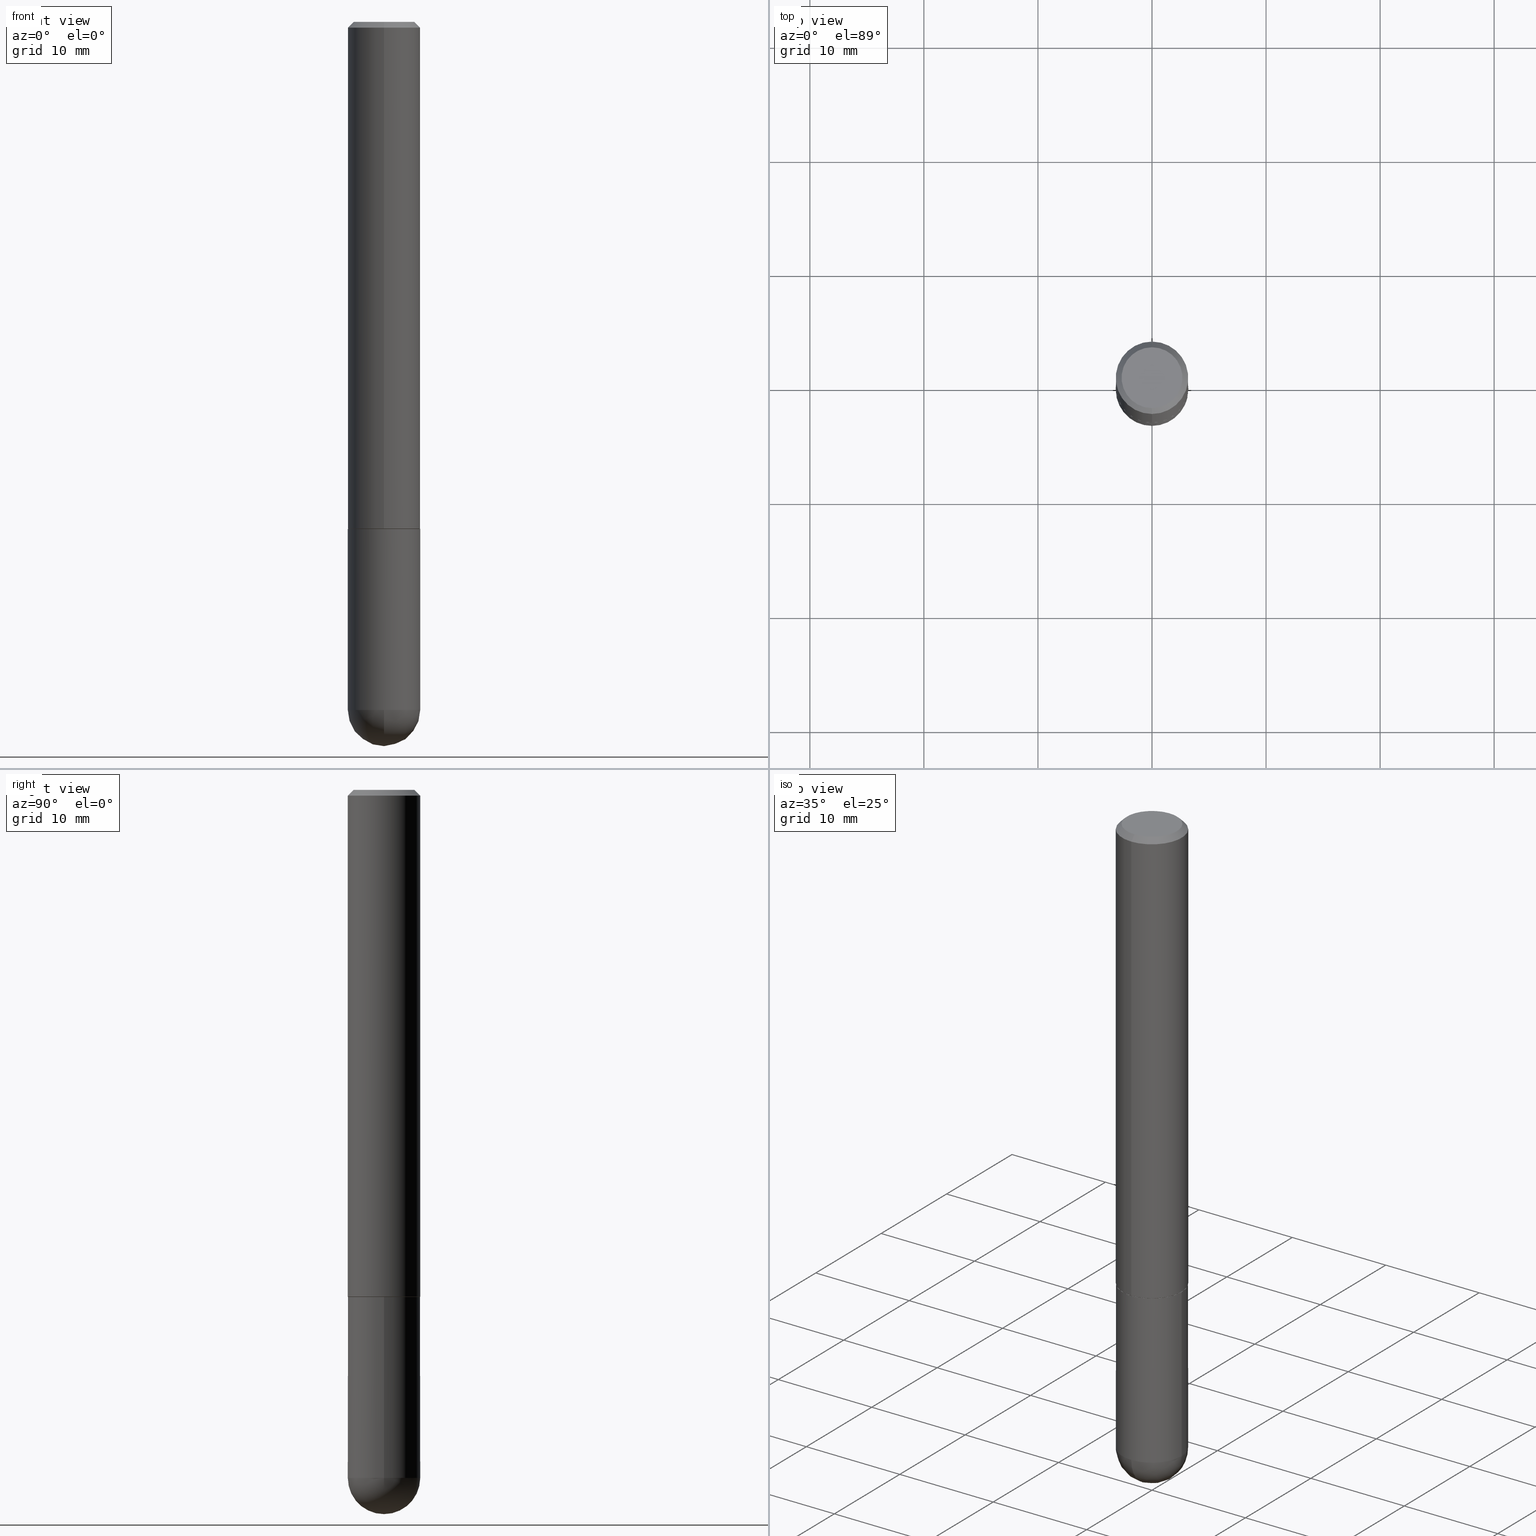
[diagram: canonical four-view strip — front | top / right | iso, engineering-drawing reading convention]
A machine part, canonical four-view strip (front | top / right | iso — engineering-drawing reading convention). The complete STEP part file that produces these views, byte-faithful:
ISO-10303-21;
HEADER;
FILE_DESCRIPTION (( 'STEP AP203' ),
    '1' );
FILE_NAME ('30920.STEP',
    '2024-02-21T16:45:09',
    ( '' ),
    ( '' ),
    'SwSTEP 2.0',
    'SolidWorks 2023',
    '' );
FILE_SCHEMA (( 'CONFIG_CONTROL_DESIGN' ));
ENDSEC;

DATA;
#1 = PRODUCT_DEFINITION ( 'UNKNOWN', '', #207, #204 ) ;
#2 = CARTESIAN_POINT ( 'NONE',  ( 0.1250000000000000000, -8.074050596074771916E-15, -2.375000000000000000 ) ) ;
#3 = PERSON_AND_ORGANIZATION ( #394, #167 ) ;
#4 = DIRECTION ( 'NONE',  ( -2.445468806185136597E-29, 3.491481338843145583E-15, 1.000000000000000000 ) ) ;
#5 = CARTESIAN_POINT ( 'NONE',  ( -0.1250000000000000000, -6.313001841663863345E-15, -1.750000000000000222 ) ) ;
#6 = UNCERTAINTY_MEASURE_WITH_UNIT (LENGTH_MEASURE( 1.000000000000000082E-05 ), #187, 'distance_accuracy_value', 'NONE');
#7 = VECTOR ( 'NONE', #76, 39.37007874015748143 ) ;
#8 = LOCAL_TIME ( 11, 45, 9.000000000000000000, #34 ) ;
#9 = MANIFOLD_SOLID_BREP ( 'Body-Move/Copy2[1]', #161 ) ;
#10 = CARTESIAN_POINT ( 'NONE',  ( 5.807988414689700538E-29, -8.292268179752471696E-15, -2.375000000000000000 ) ) ;
#11 = CARTESIAN_POINT ( 'NONE',  ( 4.891412266665553962E-31, -6.982282945719821124E-17, -0.02000000000000002470 ) ) ;
#12 = ADVANCED_FACE ( 'NONE', ( #198 ), #130, .T. ) ;
#13 = CARTESIAN_POINT ( 'NONE',  ( 4.279570410823989044E-29, -6.110092342975505460E-15, -1.750000000000000222 ) ) ;
#14 = CC_DESIGN_PERSON_AND_ORGANIZATION_ASSIGNMENT ( #292, #381, ( #207 ) ) ;
#15 = AXIS2_PLACEMENT_3D ( 'NONE', #176, #330, #267 ) ;
#16 = CARTESIAN_POINT ( 'NONE',  ( 8.728703347108260359E-16, 0.1249999999999938799, -1.750000000000000666 ) ) ;
#17 = PERSON_AND_ORGANIZATION ( #394, #167 ) ;
#18 = EDGE_CURVE ( 'NONE', #42, #239, #164, .T. ) ;
#19 = ORIENTED_EDGE ( 'NONE', *, *, #258, .F. ) ;
#20 = CC_DESIGN_DATE_AND_TIME_ASSIGNMENT ( #352, #226, ( #282 ) ) ;
#21 = FACE_OUTER_BOUND ( 'NONE', #123, .T. ) ;
#22 = AXIS2_PLACEMENT_3D ( 'NONE', #152, #402, #50 ) ;
#23 = ORIENTED_EDGE ( 'NONE', *, *, #182, .T. ) ;
#24 = DIRECTION ( 'NONE',  ( -6.982962677686266711E-15, -1.000000000000000000, 3.491141472859906642E-15 ) ) ;
#25 = ORIENTED_EDGE ( 'NONE', *, *, #66, .T. ) ;
#26 = APPLICATION_CONTEXT ( 'configuration controlled 3d designs of mechanical parts and assemblies' ) ;
#27 = ORIENTED_EDGE ( 'NONE', *, *, #287, .T. ) ;
#28 = ORIENTED_EDGE ( 'NONE', *, *, #199, .F. ) ;
#29 = CC_DESIGN_APPROVAL ( #261, ( #282 ) ) ;
#30 = DIRECTION ( 'NONE',  ( -6.982962677686265922E-15, -1.000000000000000000, 4.406206441393973340E-15 ) ) ;
#31 = PERSON_AND_ORGANIZATION_ROLE ( 'classification_officer' ) ;
#32 = DIRECTION ( 'NONE',  ( -6.982962677686265133E-15, -1.000000000000000000, 3.491141472859907037E-15 ) ) ;
#33 = ADVANCED_FACE ( 'NONE', ( #295 ), #412, .T. ) ;
#34 = COORDINATED_UNIVERSAL_TIME_OFFSET ( 5, 0, .BEHIND. ) ;
#35 = DIRECTION ( 'NONE',  ( 6.982962677686265922E-15, 1.000000000000000000, -3.483106191921935554E-15 ) ) ;
#36 = PERSON_AND_ORGANIZATION ( #394, #167 ) ;
#37 = DIRECTION ( 'NONE',  ( 2.445706133332773460E-29, -3.491141472859906642E-15, -1.000000000000000000 ) ) ;
#38 = CARTESIAN_POINT ( 'NONE',  ( 4.277540027199021844E-29, -6.106006436031975850E-15, -1.749000000000000110 ) ) ;
#39 = DIRECTION ( 'NONE',  ( -6.982962677686265133E-15, -1.000000000000000000, 4.370956789862812472E-15 ) ) ;
#40 = AXIS2_PLACEMENT_3D ( 'NONE', #279, #216, #24 ) ;
#41 = LINE ( 'NONE', #331, #7 ) ;
#42 = VERTEX_POINT ( 'NONE', #2 ) ;
#43 = CARTESIAN_POINT ( 'NONE',  ( 5.807988414689700538E-29, -8.292268179752471696E-15, -2.375000000000000000 ) ) ;
#44 = DIRECTION ( 'NONE',  ( 6.982962677686265133E-15, 1.000000000000000000, 0.000000000000000000 ) ) ;
#45 = AXIS2_PLACEMENT_3D ( 'NONE', #125, #37, #97 ) ;
#46 = AXIS2_PLACEMENT_3D ( 'NONE', #173, #136, #44 ) ;
#47 = CC_DESIGN_SECURITY_CLASSIFICATION ( #282, ( #207 ) ) ;
#48 = APPROVAL_ROLE ( '' ) ;
#49 = EDGE_LOOP ( 'NONE', ( #286, #366, #225, #51 ) ) ;
#50 = DIRECTION ( 'NONE',  ( -6.982962677686265922E-15, -1.000000000000000000, 4.406206441393973340E-15 ) ) ;
#51 = ORIENTED_EDGE ( 'NONE', *, *, #66, .F. ) ;
#52 = AXIS2_PLACEMENT_3D ( 'NONE', #131, #263, #227 ) ;
#53 = ORIENTED_EDGE ( 'NONE', *, *, #135, .F. ) ;
#54 = ADVANCED_FACE ( 'NONE', ( #68 ), #133, .F. ) ;
#55 = LINE ( 'NONE', #365, #406 ) ;
#56 = ORIENTED_EDGE ( 'NONE', *, *, #410, .F. ) ;
#57 = ADVANCED_FACE ( 'NONE', ( #322 ), #265, .F. ) ;
#58 = VERTEX_POINT ( 'NONE', #72 ) ;
#59 = COORDINATED_UNIVERSAL_TIME_OFFSET ( 5, 0, .BEHIND. ) ;
#60 = ADVANCED_FACE ( 'NONE', ( #230 ), #384, .T. ) ;
#61 = DIRECTION ( 'NONE',  ( 2.445706133332774021E-29, -3.491141472859906642E-15, -1.000000000000000000 ) ) ;
#62 = CIRCLE ( 'NONE', #301, 0.1250000000000000000 ) ;
#63 = CIRCLE ( 'NONE', #15, 0.1250000000000001943 ) ;
#64 = DATE_TIME_ROLE ( 'creation_date' ) ;
#65 = CARTESIAN_POINT ( 'NONE',  ( 5.807988414689700538E-29, -8.292268179752471696E-15, -2.375000000000000000 ) ) ;
#66 = EDGE_CURVE ( 'NONE', #223, #288, #128, .T. ) ;
#67 = DATE_AND_TIME ( #195, #8 ) ;
#68 = FACE_OUTER_BOUND ( 'NONE', #393, .T. ) ;
#69 = APPROVAL_DATE_TIME ( #67, #273 ) ;
#70 = CARTESIAN_POINT ( 'NONE',  ( 4.279985733332354606E-29, -6.109497577504836920E-15, -1.750000000000000222 ) ) ;
#71 = CC_DESIGN_APPROVAL ( #399, ( #1 ) ) ;
#72 = CARTESIAN_POINT ( 'NONE',  ( -8.881784197000694204E-16, -0.1250000000000086320, -2.374999999999999556 ) ) ;
#73 = EDGE_CURVE ( 'NONE', #84, #153, #408, .T. ) ;
#74 = CARTESIAN_POINT ( 'NONE',  ( 8.728703347107837333E-16, 0.1249999999999999306, -0.02000000000000046185 ) ) ;
#75 = DIRECTION ( 'NONE',  ( -2.445468806185136597E-29, 3.491481338843145583E-15, 1.000000000000000000 ) ) ;
#76 = DIRECTION ( 'NONE',  ( 5.024295867788490741E-15, 0.7071067811866103003, 0.7071067811864847341 ) ) ;
#77 = ORIENTED_EDGE ( 'NONE', *, *, #199, .T. ) ;
#78 = DIRECTION ( 'NONE',  ( -4.851104656540959542E-15, -0.7071067811865493491, -0.7071067811865457964 ) ) ;
#79 = PLANE ( 'NONE',  #109 ) ;
#80 = PERSON_AND_ORGANIZATION_ROLE ( 'design_owner' ) ;
#81 = LOCAL_TIME ( 11, 45, 9.000000000000000000, #294 ) ;
#82 = EDGE_LOOP ( 'NONE', ( #310, #192, #77, #369 ) ) ;
#83 = ORIENTED_EDGE ( 'NONE', *, *, #298, .F. ) ;
#84 = VERTEX_POINT ( 'NONE', #200 ) ;
#85 = DIRECTION ( 'NONE',  ( -2.445468806185136597E-29, 3.491481338843145583E-15, 1.000000000000000000 ) ) ;
#86 = EDGE_LOOP ( 'NONE', ( #335, #280, #401, #118, #249 ) ) ;
#87 = EDGE_LOOP ( 'NONE', ( #56, #344 ) ) ;
#88 = EDGE_CURVE ( 'NONE', #223, #220, #132, .T. ) ;
#89 = APPROVAL_DATE_TIME ( #98, #399 ) ;
#90 = FACE_OUTER_BOUND ( 'NONE', #82, .T. ) ;
#91 = CC_DESIGN_PERSON_AND_ORGANIZATION_ASSIGNMENT ( #350, #348, ( #207 ) ) ;
#92 = PERSON_AND_ORGANIZATION ( #394, #167 ) ;
#93 = ORIENTED_EDGE ( 'NONE', *, *, #258, .T. ) ;
#94 = AXIS2_PLACEMENT_3D ( 'NONE', #285, #148, #277 ) ;
#95 = LOCAL_TIME ( 11, 45, 9.000000000000000000, #197 ) ;
#96 = PERSON_AND_ORGANIZATION ( #394, #167 ) ;
#97 = DIRECTION ( 'NONE',  ( 6.982962677686265922E-15, 1.000000000000000000, -3.491141472859906642E-15 ) ) ;
#98 = DATE_AND_TIME ( #158, #398 ) ;
#99 = VERTEX_POINT ( 'NONE', #409 ) ;
#100 = EDGE_CURVE ( 'NONE', #58, #42, #262, .T. ) ;
#101 = PRODUCT ( '30920', '30920', '', ( #243 ) ) ;
#102 = CARTESIAN_POINT ( 'NONE',  ( 0.000000000000000000, 0.000000000000000000, 0.000000000000000000 ) ) ;
#103 = AXIS2_PLACEMENT_3D ( 'NONE', #266, #156, #32 ) ;
#104 = DIRECTION ( 'NONE',  ( -1.000000000000000000, 6.982962677686265922E-15, -4.876176775795935793E-29 ) ) ;
#105 = EDGE_CURVE ( 'NONE', #84, #58, #333, .T. ) ;
#106 = DIRECTION ( 'NONE',  ( 6.982962677686265922E-15, 1.000000000000000000, -3.483106191921935554E-15 ) ) ;
#107 = EDGE_CURVE ( 'NONE', #220, #223, #213, .T. ) ;
#108 = CARTESIAN_POINT ( 'NONE',  ( -8.728703347107841277E-16, -0.1250000000000001110, 4.363926841074887247E-16 ) ) ;
#109 = AXIS2_PLACEMENT_3D ( 'NONE', #16, #364, #104 ) ;
#110 = DIRECTION ( 'NONE',  ( 1.000000000000000000, -6.982962677686270655E-15, 0.000000000000000000 ) ) ;
#111 = ADVANCED_BREP_SHAPE_REPRESENTATION ( '30920', ( #9, #145, #214 ), #124 ) ;
#112 = CARTESIAN_POINT ( 'NONE',  ( -7.889572697437259167E-16, -0.1050000000000000239, 3.537286312517489352E-16 ) ) ;
#113 = CYLINDRICAL_SURFACE ( 'NONE', #385, 0.1250000000000000000 ) ;
#114 = EDGE_LOOP ( 'NONE', ( #120, #315, #19, #253 ) ) ;
#115 = ADVANCED_FACE ( 'NONE', ( #383 ), #162, .T. ) ;
#116 = ORIENTED_EDGE ( 'NONE', *, *, #135, .T. ) ;
#117 = ADVANCED_FACE ( 'NONE', ( #90 ), #260, .T. ) ;
#118 = ORIENTED_EDGE ( 'NONE', *, *, #18, .T. ) ;
#119 = PRODUCT_RELATED_PRODUCT_CATEGORY ( 'detail', '', ( #101 ) ) ;
#120 = ORIENTED_EDGE ( 'NONE', *, *, #410, .T. ) ;
#121 = LENGTH_MEASURE_WITH_UNIT ( LENGTH_MEASURE( 0.02539999999999999897 ), #180 );
#122 = AXIS2_PLACEMENT_3D ( 'NONE', #43, #175, #110 ) ;
#123 = EDGE_LOOP ( 'NONE', ( #184, #355, #83, #353 ) ) ;
#124 =( GEOMETRIC_REPRESENTATION_CONTEXT ( 3 ) GLOBAL_UNCERTAINTY_ASSIGNED_CONTEXT ( ( #6 ) ) GLOBAL_UNIT_ASSIGNED_CONTEXT ( ( #187, #252, #250 ) ) REPRESENTATION_CONTEXT ( 'NONE', 'WORKASPACE' ) );
#125 = CARTESIAN_POINT ( 'NONE',  ( 7.332110811570580243E-16, 0.1050000000000000239, -3.729904663495609390E-16 ) ) ;
#126 = APPLICATION_CONTEXT ( 'configuration controlled 3d designs of mechanical parts and assemblies' ) ;
#127 = PERSON_AND_ORGANIZATION_ROLE ( 'creator' ) ;
#128 = LINE ( 'NONE', #382, #154 ) ;
#129 = APPROVAL_STATUS ( 'not_yet_approved' ) ;
#130 = CONICAL_SURFACE ( 'NONE', #289, 0.1250000000000000000, 0.7853981633974473908 ) ;
#131 = CARTESIAN_POINT ( 'NONE',  ( 5.476868636775814291E-29, -8.766450547892521992E-15, -2.375000000000000000 ) ) ;
#132 = CIRCLE ( 'NONE', #155, 0.1050000000000000239 ) ;
#133 = PLANE ( 'NONE',  #45 ) ;
#134 = DIRECTION ( 'NONE',  ( 1.000000000000000000, -6.982962677686270655E-15, 0.000000000000000000 ) ) ;
#135 = EDGE_CURVE ( 'NONE', #373, #84, #255, .T. ) ;
#136 = DIRECTION ( 'NONE',  ( 1.000000000000000000, -6.982962677686265922E-15, 4.883557194083112340E-29 ) ) ;
#137 = AXIS2_PLACEMENT_3D ( 'NONE', #102, #234, #376 ) ;
#138 = DIRECTION ( 'NONE',  ( -2.445468806185136597E-29, 3.491481338843145583E-15, 1.000000000000000000 ) ) ;
#139 = DIRECTION ( 'NONE',  ( -2.445706133332774021E-29, 3.491141472859906642E-15, 1.000000000000000000 ) ) ;
#140 = DIRECTION ( 'NONE',  ( -2.445706133332774021E-29, 3.491141472859906642E-15, 1.000000000000000000 ) ) ;
#141 = CIRCLE ( 'NONE', #22, 0.1239999999999999991 ) ;
#142 = CARTESIAN_POINT ( 'NONE',  ( 4.891412266665553962E-31, -6.982282945719821124E-17, -0.02000000000000002470 ) ) ;
#143 = PERSON_AND_ORGANIZATION ( #394, #167 ) ;
#144 = CARTESIAN_POINT ( 'NONE',  ( 8.728703347108403340E-16, 0.1249999999999915623, -2.375000000000000888 ) ) ;
#145 = MANIFOLD_SOLID_BREP ( 'Body-Move/Copy2[2]', #254 ) ;
#146 = ORIENTED_EDGE ( 'NONE', *, *, #73, .T. ) ;
#147 = AXIS2_PLACEMENT_3D ( 'NONE', #270, #169, #391 ) ;
#148 = DIRECTION ( 'NONE',  ( -2.445468806185136597E-29, 3.491481338843145583E-15, 1.000000000000000000 ) ) ;
#149 = ORIENTED_EDGE ( 'NONE', *, *, #178, .F. ) ;
#150 = DIRECTION ( 'NONE',  ( 1.000000000000000000, -6.982962677686266711E-15, 4.876176775795935793E-29 ) ) ;
#151 = VERTEX_POINT ( 'NONE', #387 ) ;
#152 = CARTESIAN_POINT ( 'NONE',  ( 4.279985733332354606E-29, -6.109497577504836920E-15, -1.750000000000000222 ) ) ;
#153 = VERTEX_POINT ( 'NONE', #5 ) ;
#154 = VECTOR ( 'NONE', #290, 39.37007874015748143 ) ;
#155 = AXIS2_PLACEMENT_3D ( 'NONE', #293, #323, #325 ) ;
#156 = DIRECTION ( 'NONE',  ( -2.445706133332774021E-29, 3.491141472859906642E-15, 1.000000000000000000 ) ) ;
#157 = EDGE_CURVE ( 'NONE', #317, #256, #41, .T. ) ;
#158 = CALENDAR_DATE ( 2024, 21, 2 ) ;
#159 = CARTESIAN_POINT ( 'NONE',  ( 4.891412266665553962E-31, -6.982282945719821124E-17, -0.02000000000000002470 ) ) ;
#160 = APPROVAL_STATUS ( 'not_yet_approved' ) ;
#161 = CLOSED_SHELL ( 'NONE', ( #115, #33, #395, #209, #329 ) ) ;
#162 = CYLINDRICAL_SURFACE ( 'NONE', #137, 0.1250000000000000000 ) ;
#163 = CALENDAR_DATE ( 2024, 21, 2 ) ;
#164 = LINE ( 'NONE', #380, #360 ) ;
#165 = AXIS2_PLACEMENT_3D ( 'NONE', #236, #139, #210 ) ;
#166 = DIMENSIONAL_EXPONENTS ( 1.000000000000000000, 0.000000000000000000, 0.000000000000000000, 0.000000000000000000, 0.000000000000000000, 0.000000000000000000, 0.000000000000000000 ) ;
#167 = ORGANIZATION ( 'UNSPECIFIED', 'UNSPECIFIED', '' ) ;
#168 = EDGE_LOOP ( 'NONE', ( #116, #146, #283, #375, #340 ) ) ;
#169 = DIRECTION ( 'NONE',  ( -2.445706133332774021E-29, 3.491141472859906642E-15, 1.000000000000000000 ) ) ;
#170 = DIRECTION ( 'NONE',  ( 1.000000000000000000, -6.982962677686262766E-15, 0.000000000000000000 ) ) ;
#171 = EDGE_CURVE ( 'NONE', #239, #153, #62, .T. ) ;
#172 = CONICAL_SURFACE ( 'NONE', #186, 0.1250000000000000000, 0.7853981633974473908 ) ;
#173 = CARTESIAN_POINT ( 'NONE',  ( 5.476868636775814291E-29, -8.766450547892521992E-15, -2.375000000000000000 ) ) ;
#174 = EDGE_LOOP ( 'NONE', ( #320, #346, #25, #345 ) ) ;
#175 = DIRECTION ( 'NONE',  ( -2.445468806185136597E-29, 3.491481338843145583E-15, 1.000000000000000000 ) ) ;
#176 = CARTESIAN_POINT ( 'NONE',  ( 5.476868636775814291E-29, -8.766450547892521992E-15, -2.375000000000000000 ) ) ;
#177 = AXIS2_PLACEMENT_3D ( 'NONE', #203, #326, #39 ) ;
#178 = EDGE_CURVE ( 'NONE', #190, #373, #361, .T. ) ;
#179 = APPLICATION_PROTOCOL_DEFINITION ( 'international standard', 'config_control_design', 1994, #26 ) ;
#180 =( LENGTH_UNIT ( ) NAMED_UNIT ( * ) SI_UNIT ( $, .METRE. ) );
#181 = ORIENTED_EDGE ( 'NONE', *, *, #171, .T. ) ;
#182 = EDGE_CURVE ( 'NONE', #190, #58, #63, .T. ) ;
#183 = DIRECTION ( 'NONE',  ( -1.000000000000000000, 6.982962677686265922E-15, -4.883557194083112901E-29 ) ) ;
#184 = ORIENTED_EDGE ( 'NONE', *, *, #182, .F. ) ;
#185 = EDGE_CURVE ( 'NONE', #288, #99, #246, .T. ) ;
#186 = AXIS2_PLACEMENT_3D ( 'NONE', #142, #304, #106 ) ;
#187 =( CONVERSION_BASED_UNIT ( 'INCH', #121 ) LENGTH_UNIT ( ) NAMED_UNIT ( #166 ) );
#188 = EDGE_LOOP ( 'NONE', ( #181, #219 ) ) ;
#189 = CARTESIAN_POINT ( 'NONE',  ( 5.476868636775814291E-29, -8.766450547892521992E-15, -2.375000000000000000 ) ) ;
#190 = VERTEX_POINT ( 'NONE', #303 ) ;
#191 = APPROVAL_DATE_TIME ( #224, #261 ) ;
#192 = ORIENTED_EDGE ( 'NONE', *, *, #291, .T. ) ;
#193 = AXIS2_PLACEMENT_3D ( 'NONE', #202, #349, #30 ) ;
#194 = DIRECTION ( 'NONE',  ( -2.445706133332773460E-29, 3.491141472859906642E-15, 1.000000000000000000 ) ) ;
#195 = CALENDAR_DATE ( 2024, 21, 2 ) ;
#196 = DIRECTION ( 'NONE',  ( -2.445468806185136877E-29, 3.491481338843145188E-15, 1.000000000000000000 ) ) ;
#197 = COORDINATED_UNIVERSAL_TIME_OFFSET ( 5, 0, .BEHIND. ) ;
#198 = FACE_OUTER_BOUND ( 'NONE', #174, .T. ) ;
#199 = EDGE_CURVE ( 'NONE', #337, #99, #388, .T. ) ;
#200 = CARTESIAN_POINT ( 'NONE',  ( -0.1250000000000000000, -6.313001841663864134E-15, -2.375000000000000000 ) ) ;
#201 = AXIS2_PLACEMENT_3D ( 'NONE', #38, #140, #363 ) ;
#202 = CARTESIAN_POINT ( 'NONE',  ( 4.279985733332354606E-29, -6.109497577504836920E-15, -1.750000000000000222 ) ) ;
#203 = CARTESIAN_POINT ( 'NONE',  ( 4.277540027199021844E-29, -6.106006436031975850E-15, -1.749000000000000110 ) ) ;
#204 = DESIGN_CONTEXT ( 'detailed design', #26, 'design' ) ;
#205 = CARTESIAN_POINT ( 'NONE',  ( 0.1250000000000000000, -6.982962677686288010E-15, -1.750000000000000222 ) ) ;
#206 = VECTOR ( 'NONE', #78, 39.37007874015748143 ) ;
#207 = PRODUCT_DEFINITION_FORMATION_WITH_SPECIFIED_SOURCE ( 'ANY', '', #101, .NOT_KNOWN. ) ;
#208 = FACE_OUTER_BOUND ( 'NONE', #49, .T. ) ;
#209 = ADVANCED_FACE ( 'NONE', ( #242 ), #79, .F. ) ;
#210 = DIRECTION ( 'NONE',  ( -6.982962677686265922E-15, -1.000000000000000000, 4.406206441393973340E-15 ) ) ;
#211 = EDGE_CURVE ( 'NONE', #99, #288, #342, .T. ) ;
#212 = CARTESIAN_POINT ( 'NONE',  ( 4.891412266665553962E-31, -6.982282945719821124E-17, -0.02000000000000002470 ) ) ;
#213 = CIRCLE ( 'NONE', #103, 0.1050000000000000239 ) ;
#214 = AXIS2_PLACEMENT_3D ( 'NONE', #218, #372, #314 ) ;
#215 = ADVANCED_FACE ( 'NONE', ( #208 ), #172, .T. ) ;
#216 = DIRECTION ( 'NONE',  ( -2.445706133332774021E-29, 3.491141472859906642E-15, 1.000000000000000000 ) ) ;
#217 = EDGE_LOOP ( 'NONE', ( #93, #27, #278, #28 ) ) ;
#218 = CARTESIAN_POINT ( 'NONE',  ( 0.000000000000000000, 0.000000000000000000, 0.000000000000000000 ) ) ;
#219 = ORIENTED_EDGE ( 'NONE', *, *, #392, .T. ) ;
#220 = VERTEX_POINT ( 'NONE', #112 ) ;
#221 = AXIS2_PLACEMENT_3D ( 'NONE', #70, #194, #231 ) ;
#222 = AXIS2_PLACEMENT_3D ( 'NONE', #212, #328, #238 ) ;
#223 = VERTEX_POINT ( 'NONE', #362 ) ;
#224 = DATE_AND_TIME ( #163, #95 ) ;
#225 = ORIENTED_EDGE ( 'NONE', *, *, #211, .T. ) ;
#226 = DATE_TIME_ROLE ( 'classification_date' ) ;
#227 = DIRECTION ( 'NONE',  ( 6.982962677686265922E-15, 1.000000000000000000, -4.370956789862814839E-15 ) ) ;
#228 = AXIS2_PLACEMENT_3D ( 'NONE', #299, #321, #378 ) ;
#229 = SHAPE_DEFINITION_REPRESENTATION ( #264, #111 ) ;
#230 = FACE_OUTER_BOUND ( 'NONE', #114, .T. ) ;
#231 = DIRECTION ( 'NONE',  ( -6.982962677686265922E-15, -1.000000000000000000, 3.491141472859906642E-15 ) ) ;
#232 = CALENDAR_DATE ( 2024, 21, 2 ) ;
#233 = DIRECTION ( 'NONE',  ( -2.445468806185136877E-29, 3.491481338843145188E-15, 1.000000000000000000 ) ) ;
#234 = DIRECTION ( 'NONE',  ( -2.445468806185136597E-29, 3.491481338843145583E-15, 1.000000000000000000 ) ) ;
#235 = AXIS2_PLACEMENT_3D ( 'NONE', #11, #305, #274 ) ;
#236 = CARTESIAN_POINT ( 'NONE',  ( 4.279985733332354606E-29, -6.109497577504836920E-15, -1.750000000000000222 ) ) ;
#237 = DIRECTION ( 'NONE',  ( 1.000000000000000000, -6.982962677686270655E-15, 0.000000000000000000 ) ) ;
#238 = DIRECTION ( 'NONE',  ( -6.982962677686265922E-15, -1.000000000000000000, 3.483106191921935554E-15 ) ) ;
#239 = VERTEX_POINT ( 'NONE', #205 ) ;
#240 = CONICAL_SURFACE ( 'NONE', #165, 0.1239999999999999991, 0.7853981633975336552 ) ;
#241 = CARTESIAN_POINT ( 'NONE',  ( 8.881784197001479121E-16, 0.1249999999999941019, -1.749000000000000554 ) ) ;
#242 = FACE_OUTER_BOUND ( 'NONE', #188, .T. ) ;
#243 = MECHANICAL_CONTEXT ( 'NONE', #126, 'mechanical' ) ;
#244 = ORIENTED_EDGE ( 'NONE', *, *, #356, .T. ) ;
#245 = CIRCLE ( 'NONE', #94, 0.1250000000000000000 ) ;
#246 = CIRCLE ( 'NONE', #235, 0.1250000000000000000 ) ;
#247 = CC_DESIGN_APPROVAL ( #273, ( #207 ) ) ;
#248 = DIRECTION ( 'NONE',  ( 6.982962677686265922E-15, 1.000000000000000000, -4.370956789862814839E-15 ) ) ;
#249 = ORIENTED_EDGE ( 'NONE', *, *, #392, .F. ) ;
#250 =( NAMED_UNIT ( * ) SI_UNIT ( $, .STERADIAN. ) SOLID_ANGLE_UNIT ( ) );
#251 = ORIENTED_EDGE ( 'NONE', *, *, #291, .F. ) ;
#252 =( NAMED_UNIT ( * ) PLANE_ANGLE_UNIT ( ) SI_UNIT ( $, .RADIAN. ) );
#253 = ORIENTED_EDGE ( 'NONE', *, *, #338, .F. ) ;
#254 = CLOSED_SHELL ( 'NONE', ( #60, #351, #215, #12, #117, #284, #57, #54 ) ) ;
#255 = CIRCLE ( 'NONE', #122, 0.1250000000000000000 ) ;
#256 = VERTEX_POINT ( 'NONE', #241 ) ;
#257 = CARTESIAN_POINT ( 'NONE',  ( -0.1250000000000000000, 8.881784197001252323E-16, -6.148668862818632227E-30 ) ) ;
#258 = EDGE_CURVE ( 'NONE', #337, #256, #374, .T. ) ;
#259 = DATE_AND_TIME ( #232, #81 ) ;
#260 = CYLINDRICAL_SURFACE ( 'NONE', #147, 0.1250000000000001110 ) ;
#261 = APPROVAL ( #129, 'UNSPECIFIED' ) ;
#262 = CIRCLE ( 'NONE', #228, 0.1250000000000000000 ) ;
#263 = DIRECTION ( 'NONE',  ( -1.000000000000000000, 6.982962677686265922E-15, -4.883557194083112901E-29 ) ) ;
#264 = PRODUCT_DEFINITION_SHAPE ( 'NONE', 'NONE',  #1 ) ;
#265 = PLANE ( 'NONE',  #221 ) ;
#266 = CARTESIAN_POINT ( 'NONE',  ( 3.140585882530887527E-46, -4.483052756890670223E-32, -1.284122339854133797E-17 ) ) ;
#267 = DIRECTION ( 'NONE',  ( -7.105427357601000281E-15, -1.000000000000000000, 0.000000000000000000 ) ) ;
#268 = AXIS2_PLACEMENT_3D ( 'NONE', #10, #138, #237 ) ;
#269 = CC_DESIGN_PERSON_AND_ORGANIZATION_ASSIGNMENT ( #36, #127, ( #1 ) ) ;
#270 = CARTESIAN_POINT ( 'NONE',  ( 0.000000000000000000, 0.000000000000000000, 0.000000000000000000 ) ) ;
#271 = EDGE_CURVE ( 'NONE', #220, #99, #300, .T. ) ;
#272 = CARTESIAN_POINT ( 'NONE',  ( 8.881784197001260212E-16, 0.1250000000000001110, -4.363926841074887247E-16 ) ) ;
#273 = APPROVAL ( #160, 'UNSPECIFIED' ) ;
#274 = DIRECTION ( 'NONE',  ( -6.982962677686265922E-15, -1.000000000000000000, 3.483106191921935554E-15 ) ) ;
#275 = CIRCLE ( 'NONE', #177, 0.1250000000000002498 ) ;
#276 = DIRECTION ( 'NONE',  ( -2.445706133332773740E-29, 3.491141472859906642E-15, 1.000000000000000000 ) ) ;
#277 = DIRECTION ( 'NONE',  ( 1.000000000000000000, -6.982962677686262766E-15, 0.000000000000000000 ) ) ;
#278 = ORIENTED_EDGE ( 'NONE', *, *, #211, .F. ) ;
#279 = CARTESIAN_POINT ( 'NONE',  ( 0.000000000000000000, 0.000000000000000000, 0.000000000000000000 ) ) ;
#280 = ORIENTED_EDGE ( 'NONE', *, *, #105, .T. ) ;
#281 = VECTOR ( 'NONE', #276, 39.37007874015748143 ) ;
#282 = SECURITY_CLASSIFICATION ( '', '', #377 ) ;
#283 = ORIENTED_EDGE ( 'NONE', *, *, #171, .F. ) ;
#284 = ADVANCED_FACE ( 'NONE', ( #302 ), #240, .T. ) ;
#285 = CARTESIAN_POINT ( 'NONE',  ( 4.279570410823989044E-29, -6.110092342975505460E-15, -1.750000000000000222 ) ) ;
#286 = ORIENTED_EDGE ( 'NONE', *, *, #107, .F. ) ;
#287 = EDGE_CURVE ( 'NONE', #256, #288, #357, .T. ) ;
#288 = VERTEX_POINT ( 'NONE', #74 ) ;
#289 = AXIS2_PLACEMENT_3D ( 'NONE', #159, #61, #35 ) ;
#290 = DIRECTION ( 'NONE',  ( 4.937700262164543309E-15, 0.7071067811865444641, -0.7071067811865506814 ) ) ;
#291 = EDGE_CURVE ( 'NONE', #256, #337, #275, .T. ) ;
#292 = PERSON_AND_ORGANIZATION ( #394, #167 ) ;
#293 = CARTESIAN_POINT ( 'NONE',  ( 3.140585882530887527E-46, -4.483052756890670223E-32, -1.284122339854133797E-17 ) ) ;
#294 = COORDINATED_UNIVERSAL_TIME_OFFSET ( 5, 0, .BEHIND. ) ;
#295 = FACE_OUTER_BOUND ( 'NONE', #397, .T. ) ;
#296 = AXIS2_PLACEMENT_3D ( 'NONE', #65, #4, #134 ) ;
#297 = ORIENTED_EDGE ( 'NONE', *, *, #157, .F. ) ;
#298 = EDGE_CURVE ( 'NONE', #42, #373, #306, .T. ) ;
#299 = CARTESIAN_POINT ( 'NONE',  ( 5.807988414689700538E-29, -8.292268179752471696E-15, -2.375000000000000000 ) ) ;
#300 = LINE ( 'NONE', #386, #206 ) ;
#301 = AXIS2_PLACEMENT_3D ( 'NONE', #13, #75, #170 ) ;
#302 = FACE_OUTER_BOUND ( 'NONE', #313, .T. ) ;
#303 = CARTESIAN_POINT ( 'NONE',  ( 5.787897026856327965E-29, -9.195231672753244292E-15, -2.500000000000000444 ) ) ;
#304 = DIRECTION ( 'NONE',  ( 2.445706133332774021E-29, -3.491141472859906642E-15, -1.000000000000000000 ) ) ;
#305 = DIRECTION ( 'NONE',  ( -2.445706133332774021E-29, 3.491141472859906642E-15, 1.000000000000000000 ) ) ;
#306 = CIRCLE ( 'NONE', #268, 0.1250000000000000000 ) ;
#307 = LOCAL_TIME ( 11, 45, 9.000000000000000000, #59 ) ;
#308 = DIRECTION ( 'NONE',  ( -4.937700262164969294E-15, -0.7071067811866054154, 0.7071067811864896191 ) ) ;
#309 = DIRECTION ( 'NONE',  ( -6.982962677686265922E-15, -1.000000000000000000, 4.406206441393973340E-15 ) ) ;
#310 = ORIENTED_EDGE ( 'NONE', *, *, #287, .F. ) ;
#311 = CYLINDRICAL_SURFACE ( 'NONE', #40, 0.1250000000000001110 ) ;
#312 = ORIENTED_EDGE ( 'NONE', *, *, #107, .T. ) ;
#313 = EDGE_LOOP ( 'NONE', ( #297, #244, #371, #251 ) ) ;
#314 = DIRECTION ( 'NONE',  ( 1.000000000000000000, 0.000000000000000000, 0.000000000000000000 ) ) ;
#315 = ORIENTED_EDGE ( 'NONE', *, *, #157, .T. ) ;
#316 = CALENDAR_DATE ( 2024, 21, 2 ) ;
#317 = VERTEX_POINT ( 'NONE', #359 ) ;
#318 = CIRCLE ( 'NONE', #367, 0.1239999999999999991 ) ;
#319 = APPROVAL_ROLE ( '' ) ;
#320 = ORIENTED_EDGE ( 'NONE', *, *, #271, .F. ) ;
#321 = DIRECTION ( 'NONE',  ( -2.445468806185136597E-29, 3.491481338843145583E-15, 1.000000000000000000 ) ) ;
#322 = FACE_OUTER_BOUND ( 'NONE', #87, .T. ) ;
#323 = DIRECTION ( 'NONE',  ( -2.445706133332774021E-29, 3.491141472859906642E-15, 1.000000000000000000 ) ) ;
#324 = CC_DESIGN_DATE_AND_TIME_ASSIGNMENT ( #259, #64, ( #1 ) ) ;
#325 = DIRECTION ( 'NONE',  ( -6.982962677686265133E-15, -1.000000000000000000, 3.491141472859907037E-15 ) ) ;
#326 = DIRECTION ( 'NONE',  ( -2.445706133332774021E-29, 3.491141472859906642E-15, 1.000000000000000000 ) ) ;
#327 = AXIS2_PLACEMENT_3D ( 'NONE', #189, #183, #248 ) ;
#328 = DIRECTION ( 'NONE',  ( -2.445706133332774021E-29, 3.491141472859906642E-15, 1.000000000000000000 ) ) ;
#329 = ADVANCED_FACE ( 'NONE', ( #336 ), #113, .T. ) ;
#330 = DIRECTION ( 'NONE',  ( -1.000000000000000000, 7.105427357601001070E-15, -4.926315508542082329E-29 ) ) ;
#331 = CARTESIAN_POINT ( 'NONE',  ( 8.810729923425669213E-16, 0.1239999999999938790, -1.750000000000000666 ) ) ;
#332 = CARTESIAN_POINT ( 'NONE',  ( 0.000000000000000000, 0.000000000000000000, 0.000000000000000000 ) ) ;
#333 = CIRCLE ( 'NONE', #296, 0.1250000000000000000 ) ;
#334 = APPROVAL_STATUS ( 'not_yet_approved' ) ;
#335 = ORIENTED_EDGE ( 'NONE', *, *, #73, .F. ) ;
#336 = FACE_OUTER_BOUND ( 'NONE', #86, .T. ) ;
#337 = VERTEX_POINT ( 'NONE', #396 ) ;
#338 = EDGE_CURVE ( 'NONE', #151, #337, #55, .T. ) ;
#339 = DIRECTION ( 'NONE',  ( -2.445706133332774021E-29, 3.491141472859906642E-15, 1.000000000000000000 ) ) ;
#340 = ORIENTED_EDGE ( 'NONE', *, *, #298, .T. ) ;
#341 = CC_DESIGN_PERSON_AND_ORGANIZATION_ASSIGNMENT ( #17, #80, ( #101 ) ) ;
#342 = CIRCLE ( 'NONE', #222, 0.1250000000000000000 ) ;
#343 = CARTESIAN_POINT ( 'NONE',  ( 4.279985733332354606E-29, -6.109497577504836920E-15, -1.750000000000000222 ) ) ;
#344 = ORIENTED_EDGE ( 'NONE', *, *, #356, .F. ) ;
#345 = ORIENTED_EDGE ( 'NONE', *, *, #185, .T. ) ;
#346 = ORIENTED_EDGE ( 'NONE', *, *, #88, .F. ) ;
#347 = VECTOR ( 'NONE', #196, 39.37007874015748143 ) ;
#348 = PERSON_AND_ORGANIZATION_ROLE ( 'design_supplier' ) ;
#349 = DIRECTION ( 'NONE',  ( -2.445706133332774021E-29, 3.491141472859906642E-15, 1.000000000000000000 ) ) ;
#350 = PERSON_AND_ORGANIZATION ( #394, #167 ) ;
#351 = ADVANCED_FACE ( 'NONE', ( #370 ), #311, .T. ) ;
#352 = DATE_AND_TIME ( #316, #307 ) ;
#353 = ORIENTED_EDGE ( 'NONE', *, *, #100, .F. ) ;
#354 = VECTOR ( 'NONE', #389, 39.37007874015748143 ) ;
#355 = ORIENTED_EDGE ( 'NONE', *, *, #178, .T. ) ;
#356 = EDGE_CURVE ( 'NONE', #317, #151, #318, .T. ) ;
#357 = LINE ( 'NONE', #272, #281 ) ;
#358 = CC_DESIGN_PERSON_AND_ORGANIZATION_ASSIGNMENT ( #96, #31, ( #282 ) ) ;
#359 = CARTESIAN_POINT ( 'NONE',  ( 8.846257060213682142E-16, 0.1239999999999938790, -1.750000000000000666 ) ) ;
#360 = VECTOR ( 'NONE', #233, 39.37007874015748143 ) ;
#361 = CIRCLE ( 'NONE', #46, 0.1250000000000001943 ) ;
#362 = CARTESIAN_POINT ( 'NONE',  ( 8.030407079339208295E-16, 0.1050000000000000239, -3.794110780488316234E-16 ) ) ;
#363 = DIRECTION ( 'NONE',  ( -6.982962677686265133E-15, -1.000000000000000000, 4.370956789862812472E-15 ) ) ;
#364 = DIRECTION ( 'NONE',  ( 2.438088387897960049E-29, -3.491481338843145188E-15, -1.000000000000000000 ) ) ;
#365 = CARTESIAN_POINT ( 'NONE',  ( -8.658873720330540358E-16, -0.1240000000000061053, -1.749999999999999556 ) ) ;
#366 = ORIENTED_EDGE ( 'NONE', *, *, #271, .T. ) ;
#367 = AXIS2_PLACEMENT_3D ( 'NONE', #343, #339, #309 ) ;
#368 = COORDINATED_UNIVERSAL_TIME_OFFSET ( 5, 0, .BEHIND. ) ;
#369 = ORIENTED_EDGE ( 'NONE', *, *, #185, .F. ) ;
#370 = FACE_OUTER_BOUND ( 'NONE', #217, .T. ) ;
#371 = ORIENTED_EDGE ( 'NONE', *, *, #338, .T. ) ;
#372 = DIRECTION ( 'NONE',  ( 0.000000000000000000, 0.000000000000000000, 1.000000000000000000 ) ) ;
#373 = VERTEX_POINT ( 'NONE', #144 ) ;
#374 = CIRCLE ( 'NONE', #201, 0.1250000000000002498 ) ;
#375 = ORIENTED_EDGE ( 'NONE', *, *, #18, .F. ) ;
#376 = DIRECTION ( 'NONE',  ( 1.000000000000000000, -6.982962677686266711E-15, 4.876176775795935793E-29 ) ) ;
#377 = SECURITY_CLASSIFICATION_LEVEL ( 'unclassified' ) ;
#378 = DIRECTION ( 'NONE',  ( 1.000000000000000000, -6.982962677686270655E-15, 0.000000000000000000 ) ) ;
#379 = APPROVAL_PERSON_ORGANIZATION ( #3, #261, #319 ) ;
#380 = CARTESIAN_POINT ( 'NONE',  ( 0.1250000000000000000, -8.728703347107833388E-16, 6.095220969744919741E-30 ) ) ;
#381 = PERSON_AND_ORGANIZATION_ROLE ( 'creator' ) ;
#382 = CARTESIAN_POINT ( 'NONE',  ( 8.728703347107837333E-16, 0.1249999999999999306, -0.02000000000000046185 ) ) ;
#383 = FACE_OUTER_BOUND ( 'NONE', #168, .T. ) ;
#384 = CONICAL_SURFACE ( 'NONE', #193, 0.1239999999999999991, 0.7853981633975336552 ) ;
#385 = AXIS2_PLACEMENT_3D ( 'NONE', #332, #85, #150 ) ;
#386 = CARTESIAN_POINT ( 'NONE',  ( -8.575622497214408537E-16, -0.1250000000000000555, -0.01999999999999959102 ) ) ;
#387 = CARTESIAN_POINT ( 'NONE',  ( -8.658873720330540358E-16, -0.1240000000000061053, -1.749999999999999556 ) ) ;
#388 = LINE ( 'NONE', #108, #354 ) ;
#389 = DIRECTION ( 'NONE',  ( -2.445706133332773740E-29, 3.491141472859906642E-15, 1.000000000000000000 ) ) ;
#390 = APPROVAL_PERSON_ORGANIZATION ( #143, #399, #48 ) ;
#391 = DIRECTION ( 'NONE',  ( -6.982962677686266711E-15, -1.000000000000000000, 3.491141472859906642E-15 ) ) ;
#392 = EDGE_CURVE ( 'NONE', #153, #239, #245, .T. ) ;
#393 = EDGE_LOOP ( 'NONE', ( #405, #312 ) ) ;
#394 = PERSON ( 'UNSPECIFIED', 'UNSPECIFIED', 'UNSPECIFIED', ('UNSPECIFIED'), ('UNSPECIFIED'), ('UNSPECIFIED') ) ;
#395 = ADVANCED_FACE ( 'NONE', ( #21 ), #400, .T. ) ;
#396 = CARTESIAN_POINT ( 'NONE',  ( -8.728703347107421208E-16, -0.1250000000000063560, -1.748999999999999666 ) ) ;
#397 = EDGE_LOOP ( 'NONE', ( #149, #23, #403, #53 ) ) ;
#398 = LOCAL_TIME ( 11, 45, 9.000000000000000000, #368 ) ;
#399 = APPROVAL ( #334, 'UNSPECIFIED' ) ;
#400 = SPHERICAL_SURFACE ( 'NONE', #327, 0.1250000000000001943 ) ;
#401 = ORIENTED_EDGE ( 'NONE', *, *, #100, .T. ) ;
#402 = DIRECTION ( 'NONE',  ( -2.445706133332774021E-29, 3.491141472859906642E-15, 1.000000000000000000 ) ) ;
#403 = ORIENTED_EDGE ( 'NONE', *, *, #105, .F. ) ;
#404 = APPLICATION_PROTOCOL_DEFINITION ( 'international standard', 'config_control_design', 1994, #126 ) ;
#405 = ORIENTED_EDGE ( 'NONE', *, *, #88, .T. ) ;
#406 = VECTOR ( 'NONE', #308, 39.37007874015748143 ) ;
#407 = APPROVAL_PERSON_ORGANIZATION ( #92, #273, #411 ) ;
#408 = LINE ( 'NONE', #257, #347 ) ;
#409 = CARTESIAN_POINT ( 'NONE',  ( -8.575622497214408537E-16, -0.1250000000000000555, -0.01999999999999959102 ) ) ;
#410 = EDGE_CURVE ( 'NONE', #151, #317, #141, .T. ) ;
#411 = APPROVAL_ROLE ( '' ) ;
#412 = SPHERICAL_SURFACE ( 'NONE', #52, 0.1250000000000001943 ) ;
ENDSEC;
END-ISO-10303-21;
